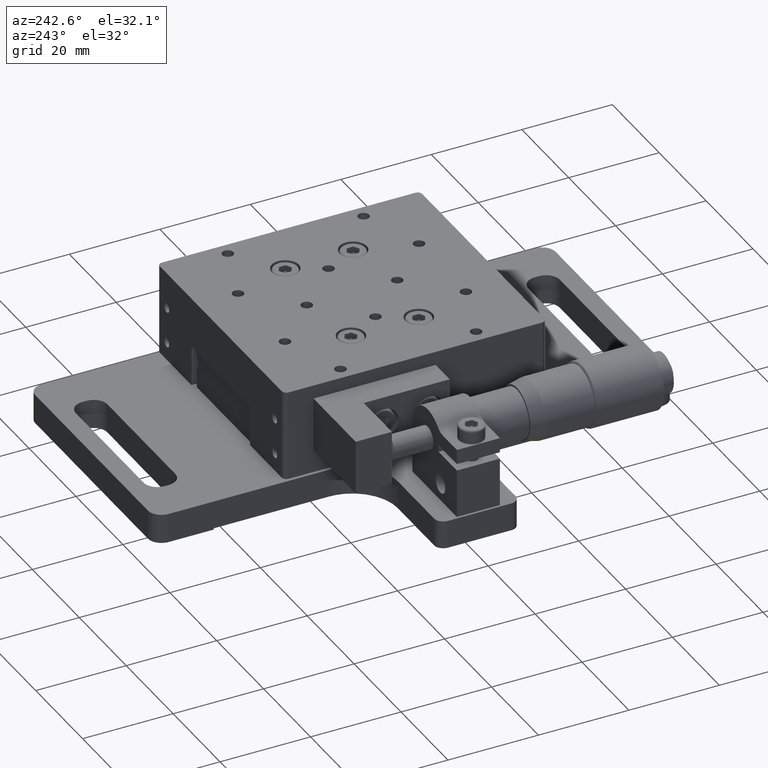
[diagram: clean part render]
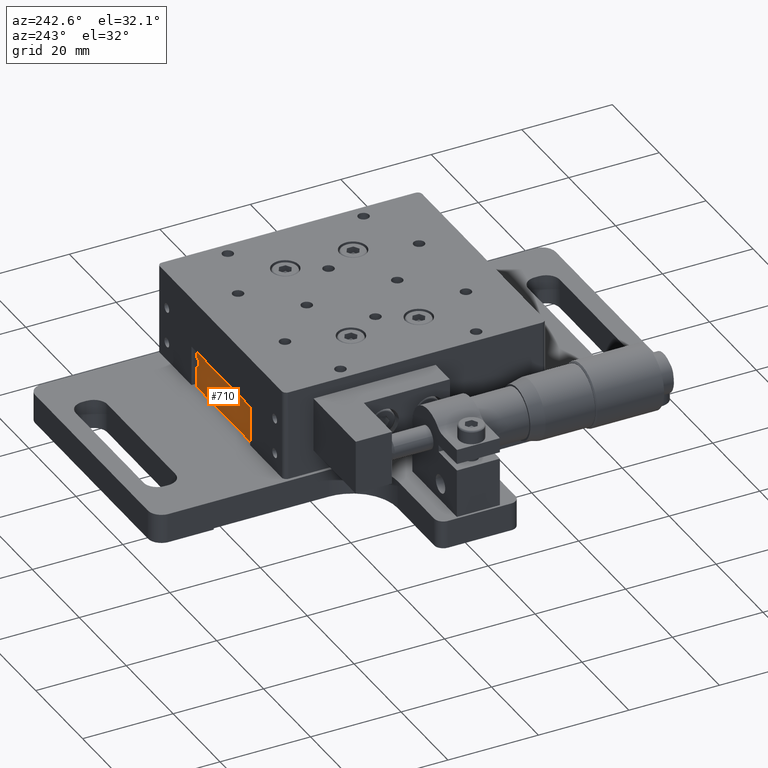
[diagram: same view with one face highlighted and labeled with its STEP entity id]
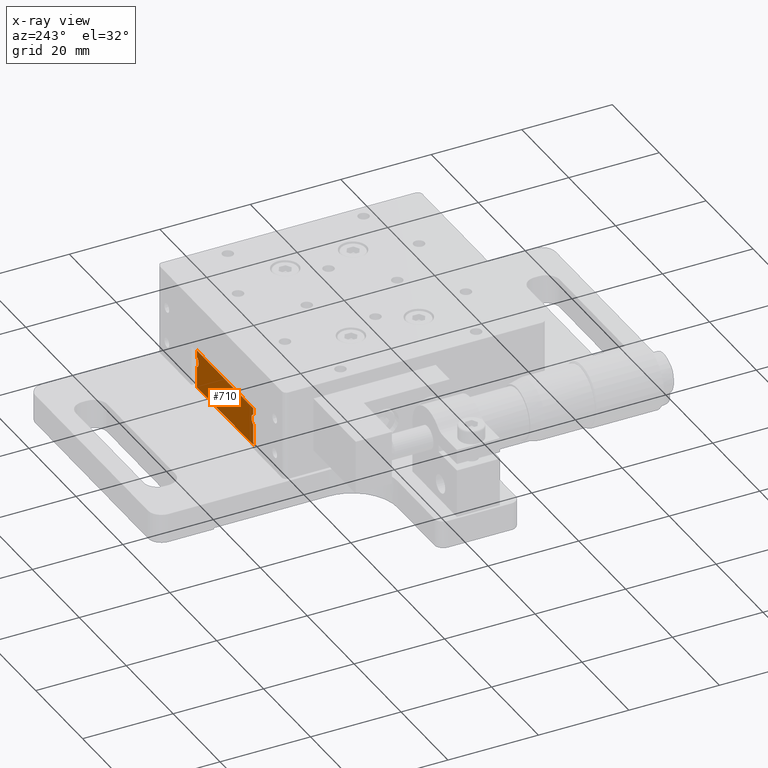
[diagram: x-ray of the same camera — body ghosted, the highlighted face saturated]
A machine part, auxiliary view. The second image highlights one B-rep face of the part: STEP entity #710.
The next image is the same camera in x-ray: the body ghosted, the highlighted face saturated — about 0% of this face is hidden behind the body in this view.
In plain terms, the highlighted face is a freeform B-spline surface patch.
Its self-contained STEP definition (entity closure, byte-faithful):
#710=ADVANCED_FACE('',(#1331),#22490,.T.);
#1331=FACE_OUTER_BOUND('',#2051,.T.);
#2051=EDGE_LOOP('',(#4362,#4363,#4364,#4365,#4366,#4367,#4368,#4369));
#4362=ORIENTED_EDGE('',*,*,#19138,.F.);
#4363=ORIENTED_EDGE('',*,*,#19193,.T.);
#4364=ORIENTED_EDGE('',*,*,#19150,.F.);
#4365=ORIENTED_EDGE('',*,*,#19192,.F.);
#4366=ORIENTED_EDGE('',*,*,#19194,.T.);
#4367=ORIENTED_EDGE('',*,*,#18575,.F.);
#4368=ORIENTED_EDGE('',*,*,#19160,.F.);
#4369=ORIENTED_EDGE('',*,*,#19186,.F.);
#6532=PCURVE('',#22412,#9938);
#7686=PCURVE('',#22483,#11092);
#7698=PCURVE('',#22486,#11104);
#7708=PCURVE('',#22487,#11114);
#7759=PCURVE('',#22874,#11165);
#7767=PCURVE('',#22875,#11173);
#7768=PCURVE('',#22490,#11174);
#7769=PCURVE('',#22490,#11175);
#7770=PCURVE('',#22490,#11176);
#7771=PCURVE('',#22490,#11177);
#7772=PCURVE('',#22490,#11178);
#7773=PCURVE('',#22490,#11179);
#7774=PCURVE('',#22490,#11180);
#7775=PCURVE('',#22490,#11181);
#7780=PCURVE('',#22491,#11186);
#7792=PCURVE('',#22492,#11198);
#9938=DEFINITIONAL_REPRESENTATION('',(#13325),#46445);
#11092=DEFINITIONAL_REPRESENTATION('',(#14575),#46445);
#11104=DEFINITIONAL_REPRESENTATION('',(#14599),#46445);
#11114=DEFINITIONAL_REPRESENTATION('',(#14619),#46445);
#11165=DEFINITIONAL_REPRESENTATION('',(#14674),#46445);
#11173=DEFINITIONAL_REPRESENTATION('',(#14686),#46445);
#11174=DEFINITIONAL_REPRESENTATION('',(#14687),#46445);
#11175=DEFINITIONAL_REPRESENTATION('',(#14689),#46445);
#11176=DEFINITIONAL_REPRESENTATION('',(#14690),#46445);
#11177=DEFINITIONAL_REPRESENTATION('',(#20823),#46445);
#11178=DEFINITIONAL_REPRESENTATION('',(#14692),#46445);
#11179=DEFINITIONAL_REPRESENTATION('',(#14693),#46445);
#11180=DEFINITIONAL_REPRESENTATION('',(#14694),#46445);
#11181=DEFINITIONAL_REPRESENTATION('',(#20824),#46445);
#11186=DEFINITIONAL_REPRESENTATION('',(#14701),#46445);
#11198=DEFINITIONAL_REPRESENTATION('',(#14721),#46445);
#13324=B_SPLINE_CURVE_WITH_KNOTS('',1,(#33164,#33165),.UNSPECIFIED.,.F.,
 .F.,(2,2),(0.,24.),.UNSPECIFIED.);
#13325=B_SPLINE_CURVE_WITH_KNOTS('',1,(#33166,#33167),.UNSPECIFIED.,.F.,
 .F.,(2,2),(0.,24.),.UNSPECIFIED.);
#14574=B_SPLINE_CURVE_WITH_KNOTS('',1,(#37863,#37864),.UNSPECIFIED.,.F.,
 .F.,(2,2),(0.,1.49108591623886),.UNSPECIFIED.);
#14575=B_SPLINE_CURVE_WITH_KNOTS('',1,(#37865,#37866),.UNSPECIFIED.,.F.,
 .F.,(2,2),(0.,1.49108591623886),.UNSPECIFIED.);
#14598=B_SPLINE_CURVE_WITH_KNOTS('',1,(#37911,#37912),.UNSPECIFIED.,.F.,
 .F.,(2,2),(0.,1.49108591623886),.UNSPECIFIED.);
#14599=B_SPLINE_CURVE_WITH_KNOTS('',1,(#37913,#37914),.UNSPECIFIED.,.F.,
 .F.,(2,2),(0.,1.49108591623886),.UNSPECIFIED.);
#14618=B_SPLINE_CURVE_WITH_KNOTS('',1,(#37951,#37952),.UNSPECIFIED.,.F.,
 .F.,(2,2),(0.,4.71762623628322),.UNSPECIFIED.);
#14619=B_SPLINE_CURVE_WITH_KNOTS('',1,(#37953,#37954),.UNSPECIFIED.,.F.,
 .F.,(2,2),(0.,4.71762623628322),.UNSPECIFIED.);
#14674=B_SPLINE_CURVE_WITH_KNOTS('',1,(#38173,#38174),.UNSPECIFIED.,.F.,
 .F.,(2,2),(-2.89819870181852,0.),.UNSPECIFIED.);
#14686=B_SPLINE_CURVE_WITH_KNOTS('',1,(#38207,#38208),.UNSPECIFIED.,.F.,
 .F.,(2,2),(-2.89819870181852,0.),.UNSPECIFIED.);
#14687=B_SPLINE_CURVE_WITH_KNOTS('',1,(#38209,#38210),.UNSPECIFIED.,.F.,
 .F.,(2,2),(0.,1.49108591623886),.UNSPECIFIED.);
#14688=B_SPLINE_CURVE_WITH_KNOTS('',1,(#38211,#38212),.UNSPECIFIED.,.F.,
 .F.,(2,2),(-24.,0.),.UNSPECIFIED.);
#14689=B_SPLINE_CURVE_WITH_KNOTS('',1,(#38213,#38214),.UNSPECIFIED.,.F.,
 .F.,(2,2),(-24.,0.),.UNSPECIFIED.);
#14690=B_SPLINE_CURVE_WITH_KNOTS('',1,(#38215,#38216),.UNSPECIFIED.,.F.,
 .F.,(2,2),(0.,1.49108591623886),.UNSPECIFIED.);
#14691=B_SPLINE_CURVE_WITH_KNOTS('',1,(#38222,#38223),.UNSPECIFIED.,.F.,
 .F.,(2,2),(-4.71762623628323,0.),.UNSPECIFIED.);
#14692=B_SPLINE_CURVE_WITH_KNOTS('',1,(#38224,#38225),.UNSPECIFIED.,.F.,
 .F.,(2,2),(-4.71762623628323,0.),.UNSPECIFIED.);
#14693=B_SPLINE_CURVE_WITH_KNOTS('',1,(#38226,#38227),.UNSPECIFIED.,.F.,
 .F.,(2,2),(0.,24.),.UNSPECIFIED.);
#14694=B_SPLINE_CURVE_WITH_KNOTS('',1,(#38228,#38229),.UNSPECIFIED.,.F.,
 .F.,(2,2),(0.,4.71762623628322),.UNSPECIFIED.);
#14701=B_SPLINE_CURVE_WITH_KNOTS('',1,(#38247,#38248),.UNSPECIFIED.,.F.,
 .F.,(2,2),(-4.71762623628323,0.),.UNSPECIFIED.);
#14721=B_SPLINE_CURVE_WITH_KNOTS('',1,(#38287,#38288),.UNSPECIFIED.,.F.,
 .F.,(2,2),(-24.,0.),.UNSPECIFIED.);
#16838=SURFACE_CURVE('',#13324,(#6532,#7773),.PCURVE_S1.);
#17401=SURFACE_CURVE('',#14574,(#7686,#7768),.PCURVE_S1.);
#17413=SURFACE_CURVE('',#14598,(#7698,#7770),.PCURVE_S1.);
#17423=SURFACE_CURVE('',#14618,(#7708,#7774),.PCURVE_S1.);
#17449=SURFACE_CURVE('',#20820,(#7759,#7775),.PCURVE_S1.);
#17455=SURFACE_CURVE('',#20822,(#7767,#7771),.PCURVE_S1.);
#17456=SURFACE_CURVE('',#14688,(#7769,#7792),.PCURVE_S1.);
#17457=SURFACE_CURVE('',#14691,(#7772,#7780),.PCURVE_S1.);
#18575=EDGE_CURVE('',#21516,#21518,#16838,.T.);
#19138=EDGE_CURVE('',#21892,#21893,#17401,.T.);
#19150=EDGE_CURVE('',#21904,#21905,#17413,.T.);
#19160=EDGE_CURVE('',#21914,#21516,#17423,.T.);
#19186=EDGE_CURVE('',#21893,#21914,#17449,.T.);
#19192=EDGE_CURVE('',#21928,#21904,#17455,.T.);
#19193=EDGE_CURVE('',#21892,#21905,#17456,.T.);
#19194=EDGE_CURVE('',#21928,#21518,#17457,.T.);
#20820=(
BOUNDED_CURVE()
B_SPLINE_CURVE(2,(#38168,#38169,#38170,#38171,#38172),.UNSPECIFIED.,.F.,
 .F.)
B_SPLINE_CURVE_WITH_KNOTS((3,2,3),(-2.89819870181852,-1.44909935090926,
0.),.UNSPECIFIED.)
CURVE()
GEOMETRIC_REPRESENTATION_ITEM()
RATIONAL_B_SPLINE_CURVE((1.,0.836660026534076,1.,0.836660026534076,1.))
REPRESENTATION_ITEM('')
);
#20822=(
BOUNDED_CURVE()
B_SPLINE_CURVE(2,(#38202,#38203,#38204,#38205,#38206),.UNSPECIFIED.,.F.,
 .F.)
B_SPLINE_CURVE_WITH_KNOTS((3,2,3),(-2.89819870181852,-1.44909935090926,
0.),.UNSPECIFIED.)
CURVE()
GEOMETRIC_REPRESENTATION_ITEM()
RATIONAL_B_SPLINE_CURVE((1.,0.836660026534076,1.,0.836660026534076,1.))
REPRESENTATION_ITEM('')
);
#20823=(
BOUNDED_CURVE()
B_SPLINE_CURVE(2,(#38217,#38218,#38219,#38220,#38221),.UNSPECIFIED.,.F.,
 .F.)
B_SPLINE_CURVE_WITH_KNOTS((3,2,3),(-2.89819870181852,-1.44909935090926,
0.),.UNSPECIFIED.)
CURVE()
GEOMETRIC_REPRESENTATION_ITEM()
RATIONAL_B_SPLINE_CURVE((1.,0.836660026534076,1.,0.836660026534076,1.))
REPRESENTATION_ITEM('')
);
#20824=(
BOUNDED_CURVE()
B_SPLINE_CURVE(2,(#38230,#38231,#38232,#38233,#38234),.UNSPECIFIED.,.F.,
 .F.)
B_SPLINE_CURVE_WITH_KNOTS((3,2,3),(-2.89819870181852,-1.44909935090926,
0.),.UNSPECIFIED.)
CURVE()
GEOMETRIC_REPRESENTATION_ITEM()
RATIONAL_B_SPLINE_CURVE((1.,0.836660026534076,1.,0.836660026534076,1.))
REPRESENTATION_ITEM('')
);
#21516=VERTEX_POINT('',#28751);
#21518=VERTEX_POINT('',#28753);
#21892=VERTEX_POINT('',#29127);
#21893=VERTEX_POINT('',#29128);
#21904=VERTEX_POINT('',#29139);
#21905=VERTEX_POINT('',#29140);
#21914=VERTEX_POINT('',#29149);
#21928=VERTEX_POINT('',#29163);
#22412=B_SPLINE_SURFACE_WITH_KNOTS('',1,1,((#24821,#24822),(#24823,#24824)),
 .UNSPECIFIED.,.F.,.F.,.F.,(2,2),(2,2),(-35.27,62.77),(-69.12,69.12),
 .UNSPECIFIED.);
#22483=B_SPLINE_SURFACE_WITH_KNOTS('',1,1,((#27181,#27182),(#27183,#27184)),
 .UNSPECIFIED.,.F.,.F.,.F.,(2,2),(2,2),(-0.62,5.62),(6.73980549213726,8.76910859162388),
 .UNSPECIFIED.);
#22486=B_SPLINE_SURFACE_WITH_KNOTS('',1,1,((#27193,#27194),(#27195,#27196)),
 .UNSPECIFIED.,.F.,.F.,.F.,(2,2),(2,2),(-5.62,0.62),(-1.76019450786275,
0.269108591623886),.UNSPECIFIED.);
#22487=B_SPLINE_SURFACE_WITH_KNOTS('',1,1,((#27197,#27198),(#27199,#27200)),
 .UNSPECIFIED.,.F.,.F.,.F.,(2,2),(2,2),(-5.72,61.72),(-0.591762623628322,
5.30938885991154),.UNSPECIFIED.);
#22490=B_SPLINE_SURFACE_WITH_KNOTS('',1,1,((#27389,#27390),(#27391,#27392)),
 .UNSPECIFIED.,.F.,.F.,.F.,(2,2),(2,2),(-5.22,5.22),(-14.52,14.52),
 .UNSPECIFIED.);
#22491=B_SPLINE_SURFACE_WITH_KNOTS('',1,1,((#27393,#27394),(#27395,#27396)),
 .UNSPECIFIED.,.F.,.F.,.F.,(2,2),(2,2),(-61.72,5.72),(-9.09176262362833,
-3.19061114008845),.UNSPECIFIED.);
#22492=B_SPLINE_SURFACE_WITH_KNOTS('',1,1,((#27397,#27398),(#27399,#27400)),
 .UNSPECIFIED.,.F.,.F.,.F.,(2,2),(2,2),(-5.72,61.72),(-2.52,26.52),
 .UNSPECIFIED.);
#22874=(
BOUNDED_SURFACE()
B_SPLINE_SURFACE(1,2,((#27353,#27354,#27355,#27356,#27357,#27358,#27359,
#27360,#27361),(#27362,#27363,#27364,#27365,#27366,#27367,#27368,#27369,
#27370)),.UNSPECIFIED.,.F.,.F.,.F.)
B_SPLINE_SURFACE_WITH_KNOTS((2,2),(3,2,2,2,3),(0.,67.44),(0.,1.5707963267949,
3.14159265358979,4.71238898038469,6.28318530717959),.UNSPECIFIED.)
GEOMETRIC_REPRESENTATION_ITEM()
RATIONAL_B_SPLINE_SURFACE(((1.,0.707106781186548,1.,0.707106781186548,1.,
0.707106781186548,1.,0.707106781186548,1.),(1.,0.707106781186548,1.,0.707106781186548,
1.,0.707106781186548,1.,0.707106781186548,1.)))
REPRESENTATION_ITEM('')
SURFACE()
);
#22875=(
BOUNDED_SURFACE()
B_SPLINE_SURFACE(1,2,((#27371,#27372,#27373,#27374,#27375,#27376,#27377,
#27378,#27379),(#27380,#27381,#27382,#27383,#27384,#27385,#27386,#27387,
#27388)),.UNSPECIFIED.,.F.,.F.,.F.)
B_SPLINE_SURFACE_WITH_KNOTS((2,2),(3,2,2,2,3),(0.,67.44),(0.,1.5707963267949,
3.14159265358979,4.71238898038469,6.28318530717959),.UNSPECIFIED.)
GEOMETRIC_REPRESENTATION_ITEM()
RATIONAL_B_SPLINE_SURFACE(((1.,0.707106781186548,1.,0.707106781186548,1.,
0.707106781186548,1.,0.707106781186548,1.),(1.,0.707106781186548,1.,0.707106781186548,
1.,0.707106781186548,1.,0.707106781186548,1.)))
REPRESENTATION_ITEM('')
SURFACE()
);
#24821=CARTESIAN_POINT('',(35.8970493497981,-8.26680358437653,-53.52));
#24822=CARTESIAN_POINT('',(35.8970493497981,-8.26680358437653,84.72));
#24823=CARTESIAN_POINT('',(-62.1429506502019,-8.26680358437653,-53.52));
#24824=CARTESIAN_POINT('',(-62.1429506502019,-8.26680358437653,84.72));
#27181=CARTESIAN_POINT('',(-11.372950650202,-1.52699809223928,-13.02));
#27182=CARTESIAN_POINT('',(-11.372950650202,0.502305007247353,-13.02));
#27183=CARTESIAN_POINT('',(-11.372950650202,-1.52699809223928,-6.78));
#27184=CARTESIAN_POINT('',(-11.372950650202,0.502305007247353,-6.78));
#27193=CARTESIAN_POINT('',(12.627049349798,-1.52699809223928,-6.78));
#27194=CARTESIAN_POINT('',(12.627049349798,0.502305007247357,-6.78));
#27195=CARTESIAN_POINT('',(12.627049349798,-1.52699809223928,-13.02));
#27196=CARTESIAN_POINT('',(12.627049349798,0.502305007247357,-13.02));
#27197=CARTESIAN_POINT('',(-11.372950650202,-8.85856620800485,-18.12));
#27198=CARTESIAN_POINT('',(-11.372950650202,-2.95741472446499,-18.12));
#27199=CARTESIAN_POINT('',(-11.372950650202,-8.85856620800485,49.32));
#27200=CARTESIAN_POINT('',(-11.372950650202,-2.95741472446499,49.32));
#27353=CARTESIAN_POINT('',(-13.122950650202,-2.40353342435435,49.32));
#27354=CARTESIAN_POINT('',(-13.122950650202,-1.15353342435435,49.32));
#27355=CARTESIAN_POINT('',(-11.872950650202,-1.15353342435435,49.32));
#27356=CARTESIAN_POINT('',(-10.622950650202,-1.15353342435435,49.32));
#27357=CARTESIAN_POINT('',(-10.622950650202,-2.40353342435435,49.32));
#27358=CARTESIAN_POINT('',(-10.622950650202,-3.65353342435435,49.32));
#27359=CARTESIAN_POINT('',(-11.872950650202,-3.65353342435435,49.32));
#27360=CARTESIAN_POINT('',(-13.122950650202,-3.65353342435435,49.32));
#27361=CARTESIAN_POINT('',(-13.122950650202,-2.40353342435435,49.32));
#27362=CARTESIAN_POINT('',(-13.122950650202,-2.40353342435435,-18.12));
#27363=CARTESIAN_POINT('',(-13.122950650202,-1.15353342435435,-18.12));
#27364=CARTESIAN_POINT('',(-11.872950650202,-1.15353342435435,-18.12));
#27365=CARTESIAN_POINT('',(-10.622950650202,-1.15353342435435,-18.12));
#27366=CARTESIAN_POINT('',(-10.622950650202,-2.40353342435435,-18.12));
#27367=CARTESIAN_POINT('',(-10.622950650202,-3.65353342435435,-18.12));
#27368=CARTESIAN_POINT('',(-11.872950650202,-3.65353342435435,-18.12));
#27369=CARTESIAN_POINT('',(-13.122950650202,-3.65353342435435,-18.12));
#27370=CARTESIAN_POINT('',(-13.122950650202,-2.40353342435435,-18.12));
#27371=CARTESIAN_POINT('',(14.377049349798,-2.40353342435435,49.32));
#27372=CARTESIAN_POINT('',(14.377049349798,-3.65353342435435,49.32));
#27373=CARTESIAN_POINT('',(13.127049349798,-3.65353342435435,49.32));
#27374=CARTESIAN_POINT('',(11.877049349798,-3.65353342435435,49.32));
#27375=CARTESIAN_POINT('',(11.877049349798,-2.40353342435435,49.32));
#27376=CARTESIAN_POINT('',(11.877049349798,-1.15353342435435,49.32));
#27377=CARTESIAN_POINT('',(13.127049349798,-1.15353342435435,49.32));
#27378=CARTESIAN_POINT('',(14.377049349798,-1.15353342435435,49.32));
#27379=CARTESIAN_POINT('',(14.377049349798,-2.40353342435435,49.32));
#27380=CARTESIAN_POINT('',(14.377049349798,-2.40353342435435,-18.12));
#27381=CARTESIAN_POINT('',(14.377049349798,-3.65353342435435,-18.12));
#27382=CARTESIAN_POINT('',(13.127049349798,-3.65353342435435,-18.12));
#27383=CARTESIAN_POINT('',(11.877049349798,-3.65353342435435,-18.12));
#27384=CARTESIAN_POINT('',(11.877049349798,-2.40353342435435,-18.12));
#27385=CARTESIAN_POINT('',(11.877049349798,-1.15353342435435,-18.12));
#27386=CARTESIAN_POINT('',(13.127049349798,-1.15353342435435,-18.12));
#27387=CARTESIAN_POINT('',(14.377049349798,-1.15353342435435,-18.12));
#27388=CARTESIAN_POINT('',(14.377049349798,-2.40353342435435,-18.12));
#27389=CARTESIAN_POINT('',(-13.892950650202,-9.23680358437653,-12.4));
#27390=CARTESIAN_POINT('',(15.147049349798,-9.23680358437653,-12.4));
#27391=CARTESIAN_POINT('',(-13.892950650202,1.20319641562347,-12.4));
#27392=CARTESIAN_POINT('',(15.147049349798,1.20319641562347,-12.4));
#27393=CARTESIAN_POINT('',(12.627049349798,-8.85856620800485,49.32));
#27394=CARTESIAN_POINT('',(12.627049349798,-2.95741472446498,49.32));
#27395=CARTESIAN_POINT('',(12.627049349798,-8.85856620800485,-18.12));
#27396=CARTESIAN_POINT('',(12.627049349798,-2.95741472446498,-18.12));
#27397=CARTESIAN_POINT('',(-13.892950650202,0.233196415623468,-18.12));
#27398=CARTESIAN_POINT('',(15.147049349798,0.233196415623471,-18.12));
#27399=CARTESIAN_POINT('',(-13.892950650202,0.233196415623468,49.32));
#27400=CARTESIAN_POINT('',(15.147049349798,0.233196415623471,49.32));
#28751=CARTESIAN_POINT('',(-11.372950650202,-8.26680358437653,-12.4));
#28753=CARTESIAN_POINT('',(12.627049349798,-8.26680358437653,-12.4));
#29127=CARTESIAN_POINT('',(-11.372950650202,0.233196415623468,-12.4));
#29128=CARTESIAN_POINT('',(-11.372950650202,-1.25788950061539,-12.4));
#29139=CARTESIAN_POINT('',(12.627049349798,-1.25788950061539,-12.4));
#29140=CARTESIAN_POINT('',(12.627049349798,0.233196415623471,-12.4));
#29149=CARTESIAN_POINT('',(-11.372950650202,-3.54917734809331,-12.4));
#29163=CARTESIAN_POINT('',(12.627049349798,-3.5491773480933,-12.4));
#33164=CARTESIAN_POINT('',(-11.372950650202,-8.26680358437653,-12.4));
#33165=CARTESIAN_POINT('',(12.627049349798,-8.26680358437653,-12.4));
#33166=CARTESIAN_POINT('',(12.0000000000001,-28.));
#33167=CARTESIAN_POINT('',(-11.9999999999999,-28.));
#37863=CARTESIAN_POINT('',(-11.372950650202,0.233196415623468,-12.4));
#37864=CARTESIAN_POINT('',(-11.372950650202,-1.25788950061539,-12.4));
#37865=CARTESIAN_POINT('',(0.,8.5));
#37866=CARTESIAN_POINT('',(0.,7.00891408376114));
#37911=CARTESIAN_POINT('',(12.627049349798,-1.25788950061539,-12.4));
#37912=CARTESIAN_POINT('',(12.627049349798,0.233196415623471,-12.4));
#37913=CARTESIAN_POINT('',(0.,-1.49108591623886));
#37914=CARTESIAN_POINT('',(0.,0.));
#37951=CARTESIAN_POINT('',(-11.372950650202,-3.54917734809331,-12.4));
#37952=CARTESIAN_POINT('',(-11.372950650202,-8.26680358437653,-12.4));
#37953=CARTESIAN_POINT('',(0.,4.71762623628322));
#37954=CARTESIAN_POINT('',(0.,0.));
#38168=CARTESIAN_POINT('',(-11.372950650202,-1.25788950061539,-12.4));
#38169=CARTESIAN_POINT('',(-10.622950650202,-1.58521633596938,-12.4000000000001));
#38170=CARTESIAN_POINT('',(-10.622950650202,-2.40353342435435,-12.4000000000001));
#38171=CARTESIAN_POINT('',(-10.622950650202,-3.22185051273932,-12.4000000000001));
#38172=CARTESIAN_POINT('',(-11.372950650202,-3.54917734809331,-12.4));
#38173=CARTESIAN_POINT('',(61.72,1.99754512468693));
#38174=CARTESIAN_POINT('',(61.72,4.28564018249266));
#38202=CARTESIAN_POINT('',(12.627049349798,-3.5491773480933,-12.4));
#38203=CARTESIAN_POINT('',(11.877049349798,-3.22185051273931,-12.4000000000001));
#38204=CARTESIAN_POINT('',(11.877049349798,-2.40353342435435,-12.4000000000001));
#38205=CARTESIAN_POINT('',(11.877049349798,-1.58521633596938,-12.4000000000001));
#38206=CARTESIAN_POINT('',(12.627049349798,-1.25788950061539,-12.4));
#38207=CARTESIAN_POINT('',(61.72,1.99754512468693));
#38208=CARTESIAN_POINT('',(61.72,4.28564018249266));
#38209=CARTESIAN_POINT('',(4.25,-12.));
#38210=CARTESIAN_POINT('',(2.75891408376114,-12.));
#38211=CARTESIAN_POINT('',(-11.372950650202,0.233196415623468,-12.4));
#38212=CARTESIAN_POINT('',(12.627049349798,0.233196415623471,-12.4));
#38213=CARTESIAN_POINT('',(4.25,-12.));
#38214=CARTESIAN_POINT('',(4.25,12.));
#38215=CARTESIAN_POINT('',(2.75891408376114,12.));
#38216=CARTESIAN_POINT('',(4.25,12.));
#38217=CARTESIAN_POINT('',(0.467626236283226,12.));
#38218=CARTESIAN_POINT('',(0.794953071637212,11.25));
#38219=CARTESIAN_POINT('',(1.61327016002218,11.25));
#38220=CARTESIAN_POINT('',(2.43158724840715,11.25));
#38221=CARTESIAN_POINT('',(2.75891408376114,12.));
#38222=CARTESIAN_POINT('',(12.627049349798,-3.5491773480933,-12.4));
#38223=CARTESIAN_POINT('',(12.627049349798,-8.26680358437653,-12.4));
#38224=CARTESIAN_POINT('',(0.467626236283226,12.));
#38225=CARTESIAN_POINT('',(-4.25,12.));
#38226=CARTESIAN_POINT('',(-4.25,-12.));
#38227=CARTESIAN_POINT('',(-4.25,12.));
#38228=CARTESIAN_POINT('',(0.46762623628322,-12.));
#38229=CARTESIAN_POINT('',(-4.25,-12.));
#38230=CARTESIAN_POINT('',(2.75891408376114,-12.));
#38231=CARTESIAN_POINT('',(2.43158724840715,-11.25));
#38232=CARTESIAN_POINT('',(1.61327016002218,-11.25));
#38233=CARTESIAN_POINT('',(0.794953071637208,-11.25));
#38234=CARTESIAN_POINT('',(0.46762623628322,-12.));
#38247=CARTESIAN_POINT('',(0.,-3.78237376371677));
#38248=CARTESIAN_POINT('',(0.,-8.5));
#38287=CARTESIAN_POINT('',(0.,0.));
#38288=CARTESIAN_POINT('',(0.,24.));
#46445=(
GEOMETRIC_REPRESENTATION_CONTEXT(2)
PARAMETRIC_REPRESENTATION_CONTEXT()
REPRESENTATION_CONTEXT('pspace','')
);